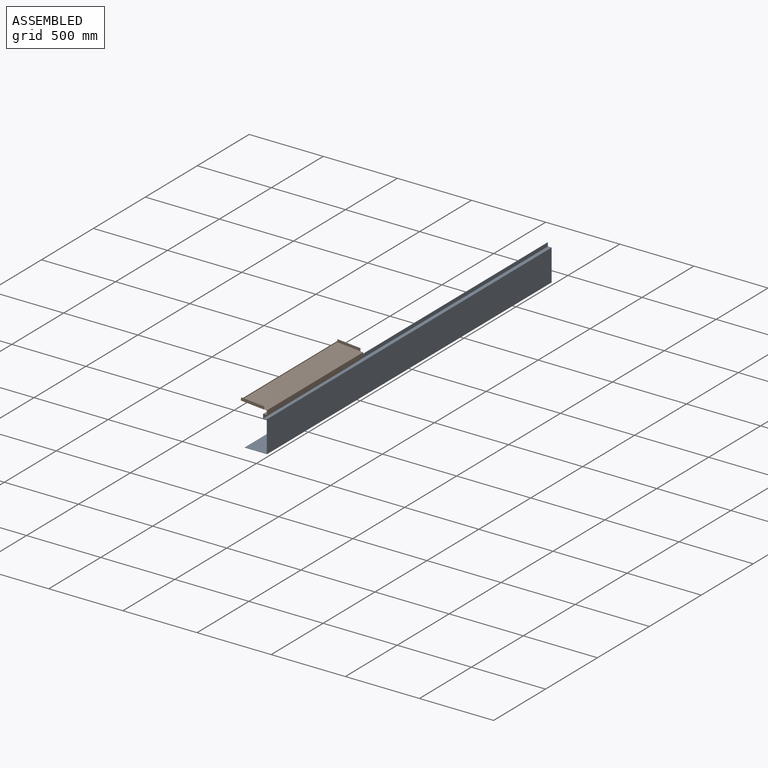
[diagram: assembled view]
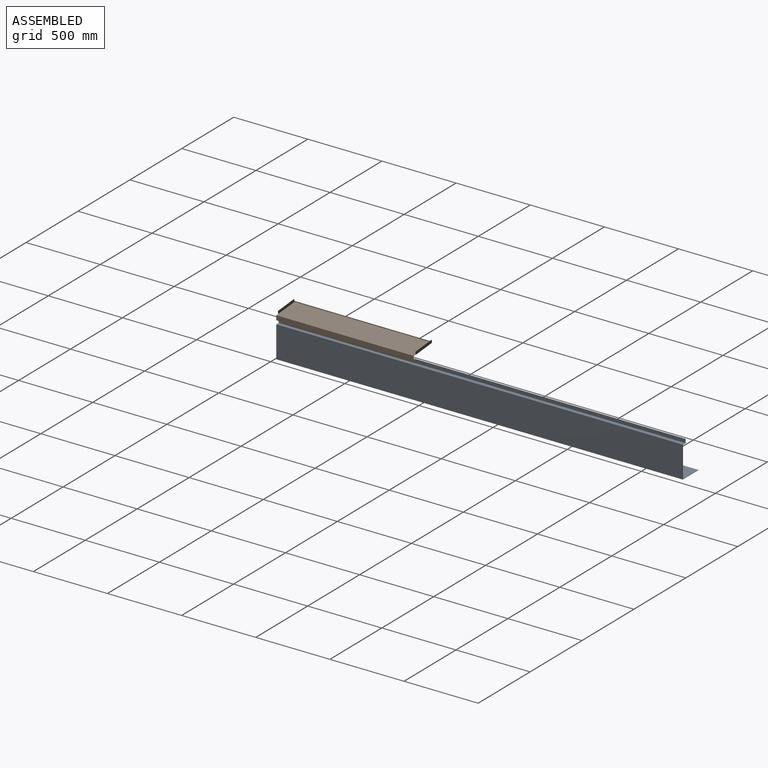
[diagram: assembled view, second angle]
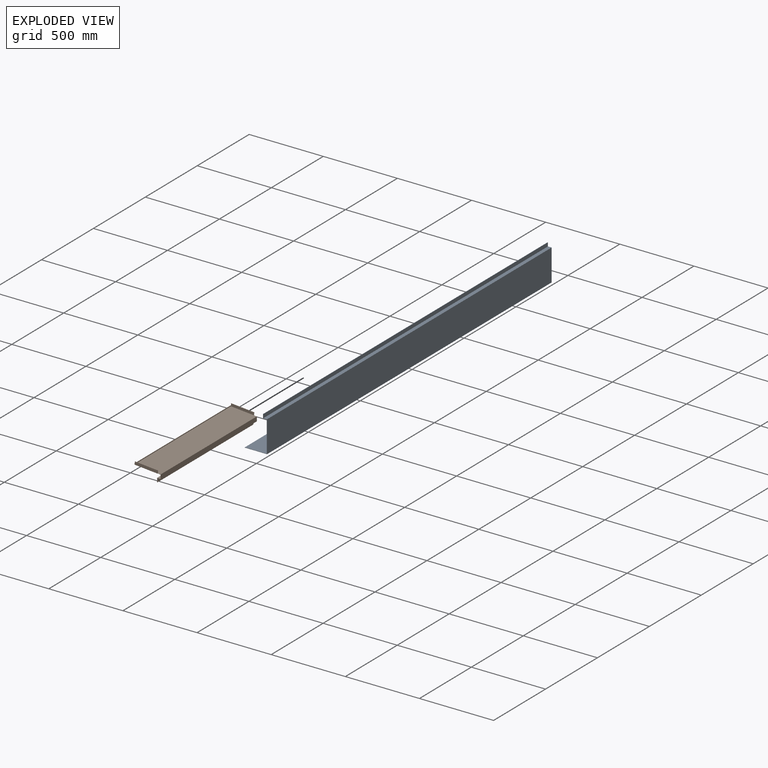
[diagram: exploded view]
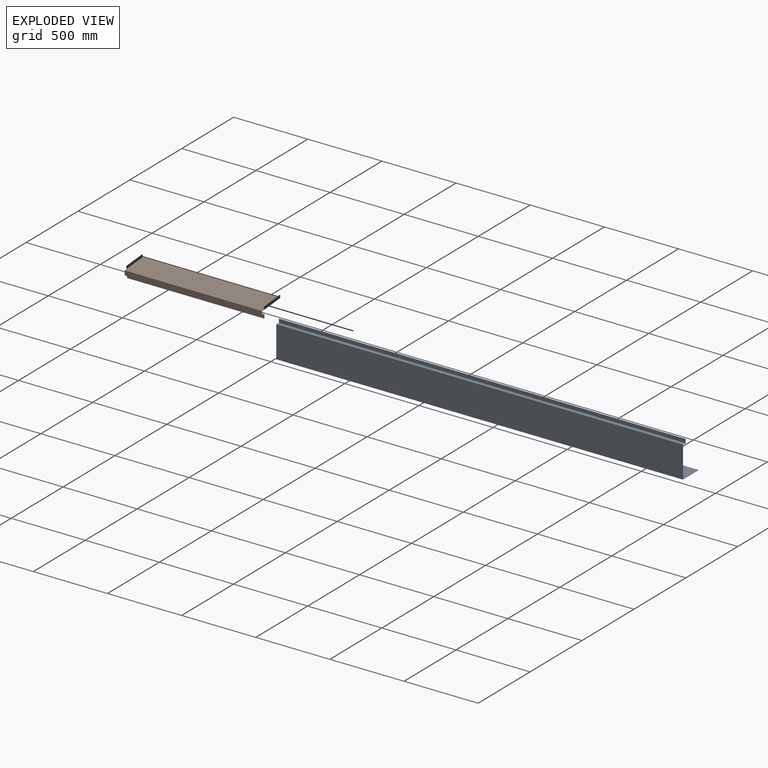
[diagram: exploded view, second angle]
ASSEMBLY  parts=2 mates=3
PART A: 12 faces, bbox 150x2741.3x238 mm
  f0: plane 2741.25x25mm, normal (0,0,1), area 68531.2mm2, adj f7,f9,f10,f11
  f1: plane 2741.25x2mm, normal (0,0,1), area 5482.5mm2, adj f6,f7,f10,f11
  f2: plane 2741.25x25mm, normal (0,0,-1), area 68531.2mm2, adj f5,f6,f10,f11
  f3: plane 2741.25x148mm, normal (0,0,1), area 405705mm2, adj f4,f5,f10,f11
  f4: plane 2741.25x2mm, normal (-1,0,0), area 5482.5mm2, adj f3,f8,f10,f11
  f5: plane 2741.25x209mm, normal (-1,0,0), area 572921.2mm2, adj f2,f3,f10,f11
  f6: plane 2741.25x27mm, normal (-1,0,0), area 74013.7mm2, adj f1,f2,f10,f11
  f7: plane 2741.25x25mm, normal (1,0,0), area 68531.2mm2, adj f0,f1,f10,f11
  f8: plane 2741.25x150mm, normal (0,0,-1), area 411187.5mm2, adj f4,f9,f10,f11
  f9: plane 2741.25x213mm, normal (1,0,0), area 583886.2mm2, adj f0,f8,f10,f11
  f10: plane 238x150mm, normal (0,1,0), area 822mm2, adj f0,f1,f2,f3,f4,f5,f6,f7
  f11: plane 238x150mm, normal (0,-1,0), area 822mm2, adj f0,f1,f2,f3,f4,f5,f6,f7
PART B: 26 faces, bbox 177x929x88.2 mm
  f0: plane 56.74x25mm, normal (0,1,0), area 192.3mm2, adj f6,f7,f8,f9,f10,f11,f12,f13
  f1: plane 6.99x2mm, normal (0,1,0), area 13.7mm2, adj f4,f5,f6,f15,f22
  f2: plane 6.99x2mm, normal (0,-1,0), area 13.7mm2, adj f4,f5,f6,f15,f17
  f3: plane 56.74x25mm, normal (0,-1,0), area 192.3mm2, adj f6,f7,f8,f9,f10,f11,f12,f13
  f4: plane 925x2mm, normal (0,0,1), area 1850mm2, adj f1,f2,f5,f15
  f5: plane 925x6.83mm, normal (-1,0,0), area 6320.2mm2, adj f1,f2,f4,f6
  f6: plane 929x175mm, normal (-0.09,0,-1), area 163116mm2, adj f0,f1,f2,f3,f5,f7,f17,f18
  f7: plane 925x26.17mm, normal (-1,0,0), area 24204.8mm2, adj f0,f3,f6,f8
  f8: plane 925x23mm, normal (0,0,1), area 21275mm2, adj f0,f3,f7,f9
  f9: plane 925x27mm, normal (-1,0,0), area 24975mm2, adj f0,f3,f8,f10
  f10: plane 925x2mm, normal (0,0,-1), area 1850mm2, adj f0,f3,f9,f11
  f11: plane 925x25mm, normal (1,0,0), area 23125mm2, adj f0,f3,f10,f12
  f12: plane 925x23mm, normal (0,0,-1), area 21275mm2, adj f0,f3,f11,f13
  f13: plane 925x30mm, normal (1,0,0), area 27750mm2, adj f0,f3,f12,f14
  f14: plane 925x175mm, normal (0.09,0,1), area 162493.3mm2, adj f0,f3,f13,f15,f16,f25
  f15: plane 925x5mm, normal (1,0,0), area 4625mm2, adj f1,f2,f4,f14
  f16: plane 156.65x31.5mm, normal (0,1,0), area 2802mm2, adj f14,f17,f18,f19
  f17: plane 19.92x2mm, normal (-1,0,0.09), area 40mm2, adj f2,f6,f16,f19,f20
  f18: plane 19.92x2mm, normal (1,0,-0.09), area 40mm2, adj f3,f6,f16,f19,f20
  f19: plane 155.08x13.57mm, normal (0.09,0,1), area 311.3mm2, adj f16,f17,f18,f20
  f20: plane 156.82x33.49mm, normal (0,-1,0), area 3113.4mm2, adj f6,f17,f18,f19
  f21: plane 19.92x2mm, normal (1,0,-0.09), area 40mm2, adj f0,f6,f23,f24,f25
  f22: plane 19.92x2mm, normal (-1,0,0.09), area 40mm2, adj f1,f6,f23,f24,f25
  f23: plane 155.08x13.57mm, normal (0.09,0,1), area 311.3mm2, adj f21,f22,f24,f25
  f24: plane 156.82x33.49mm, normal (0,1,0), area 3113.4mm2, adj f6,f21,f22,f23
  f25: plane 156.65x31.5mm, normal (0,-1,0), area 2802mm2, adj f14,f21,f22,f23
PLACE A t=(-469.8,3049.27,-394.87)mm fixed
PLACE B t=(-646.8,-1515.73,-396.39)mm
MATE planar B.f3 <-> A.f11  axis (0,-1,0) through (-481.65,-2440.73,-432.54)mm
MATE planar B.f9 <-> A.f7  axis (-1,0,0) through (-494.8,-1978.23,-451.37)mm
MATE planar B.f10 <-> A.f0  axis (0,0,-1) through (-493.8,-1978.23,-464.87)mm
